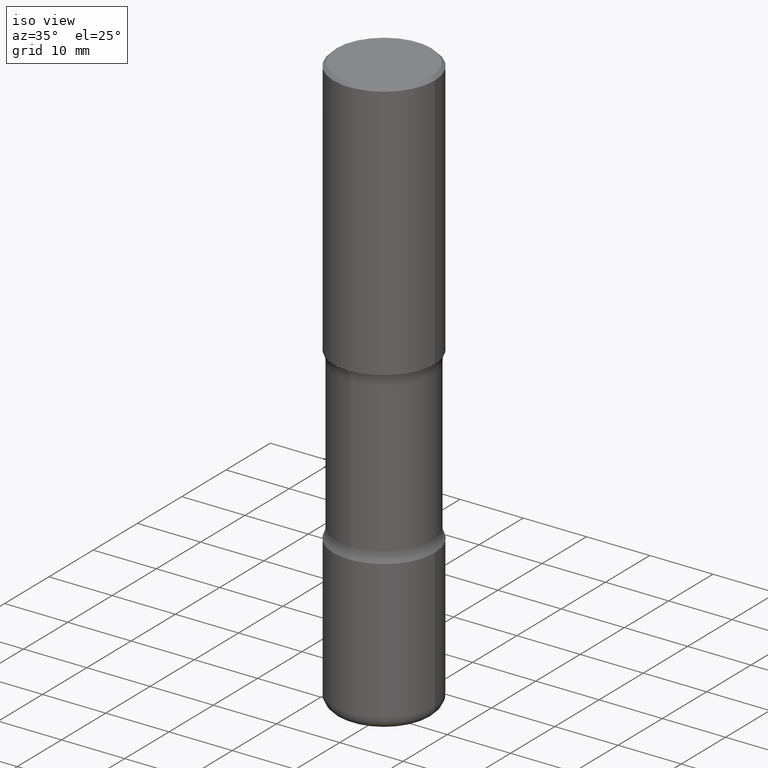
[diagram: clean part render]
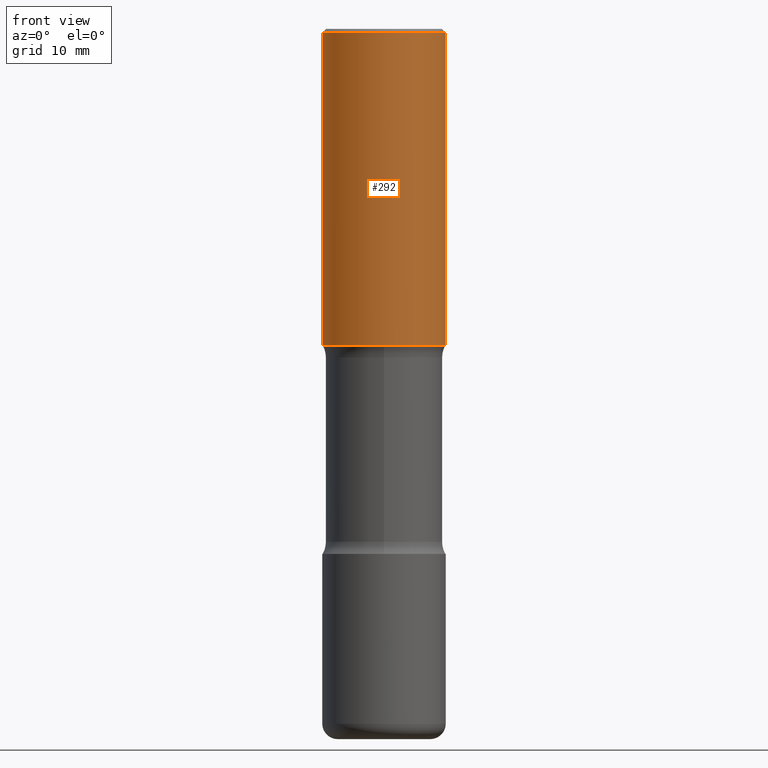
[diagram: tour spotlight — one face highlighted and labeled with its STEP entity id]
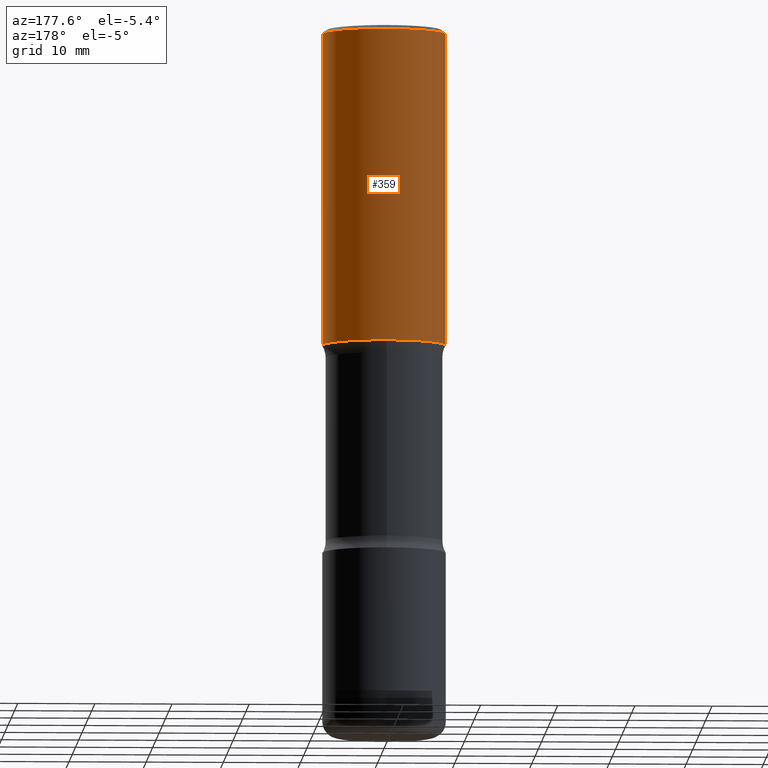
[diagram: tour spotlight — one face highlighted and labeled with its STEP entity id]
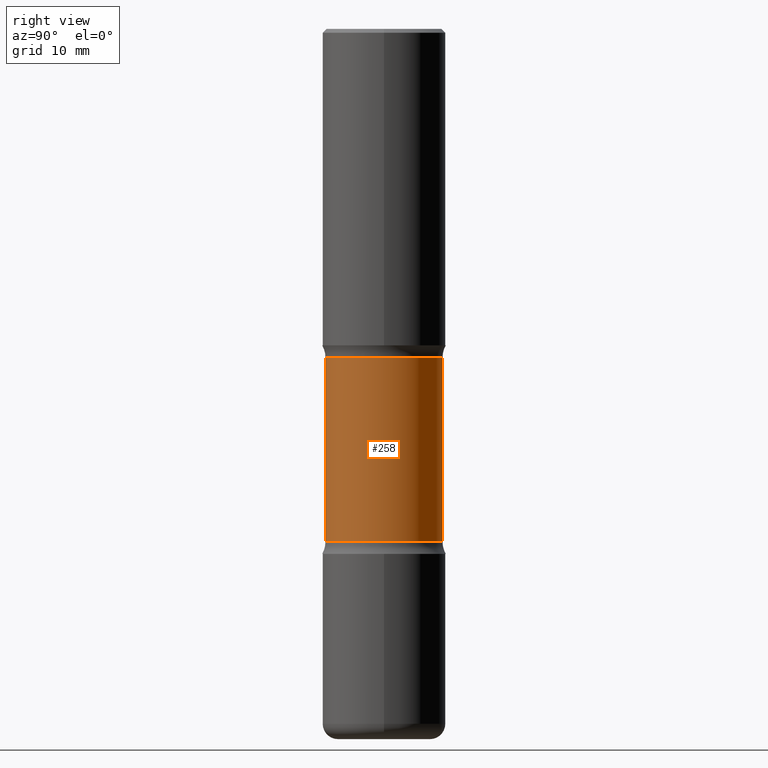
[diagram: tour spotlight — one face highlighted and labeled with its STEP entity id]
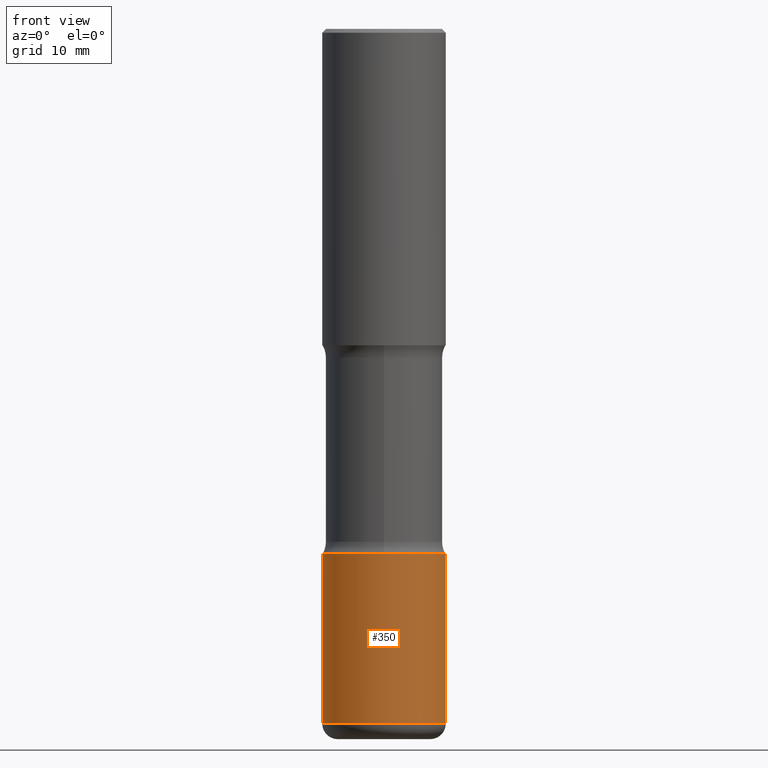
[diagram: tour spotlight — one face highlighted and labeled with its STEP entity id]
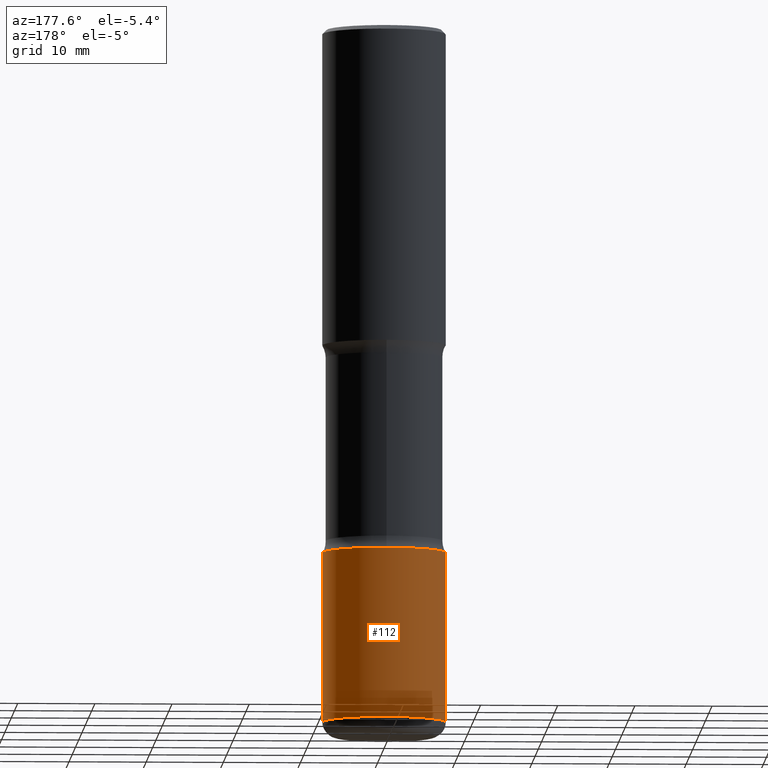
[diagram: tour spotlight — one face highlighted and labeled with its STEP entity id]
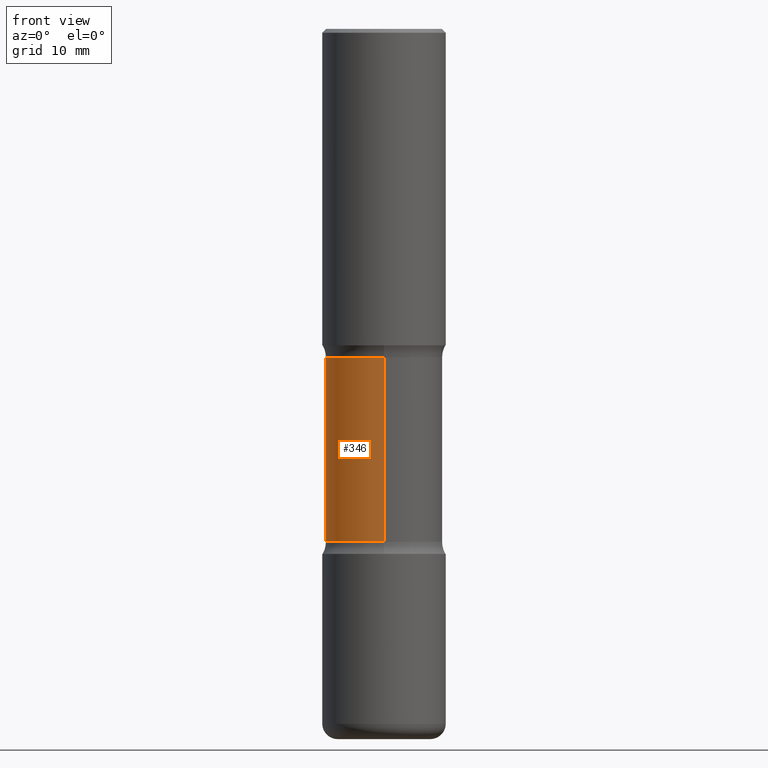
[diagram: tour spotlight — one face highlighted and labeled with its STEP entity id]
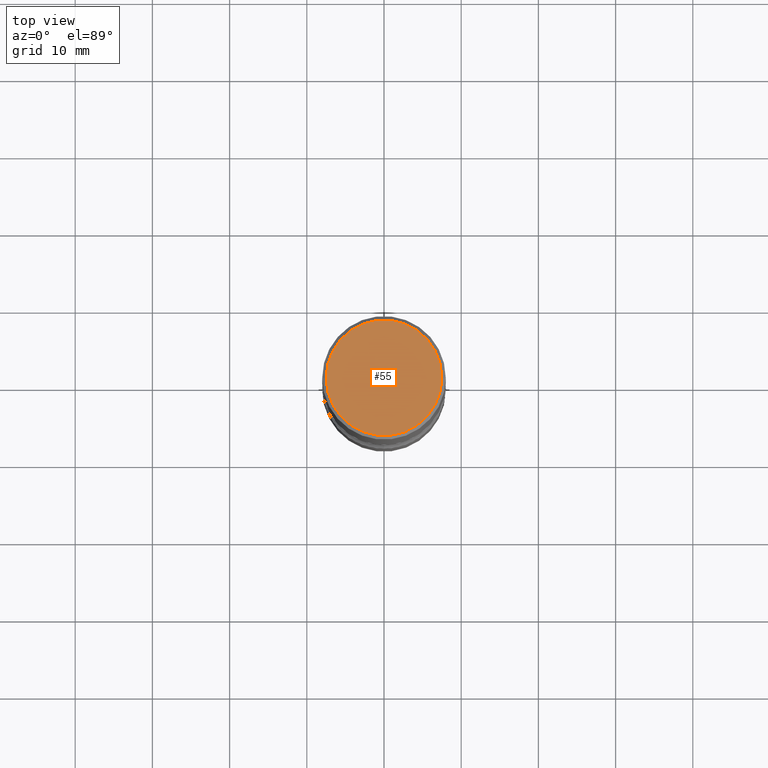
[diagram: tour spotlight — one face highlighted and labeled with its STEP entity id]
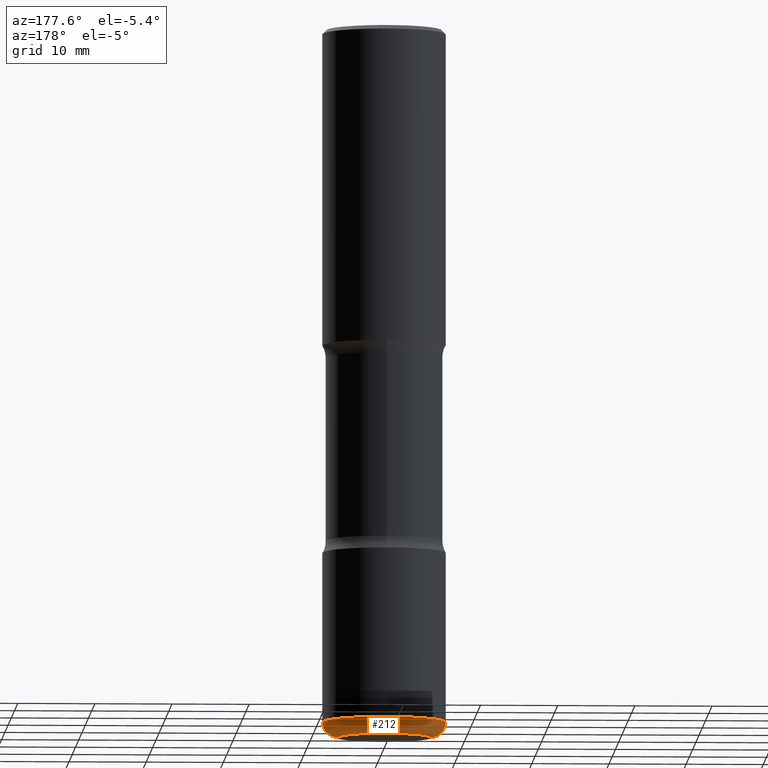
[diagram: tour spotlight — one face highlighted and labeled with its STEP entity id]
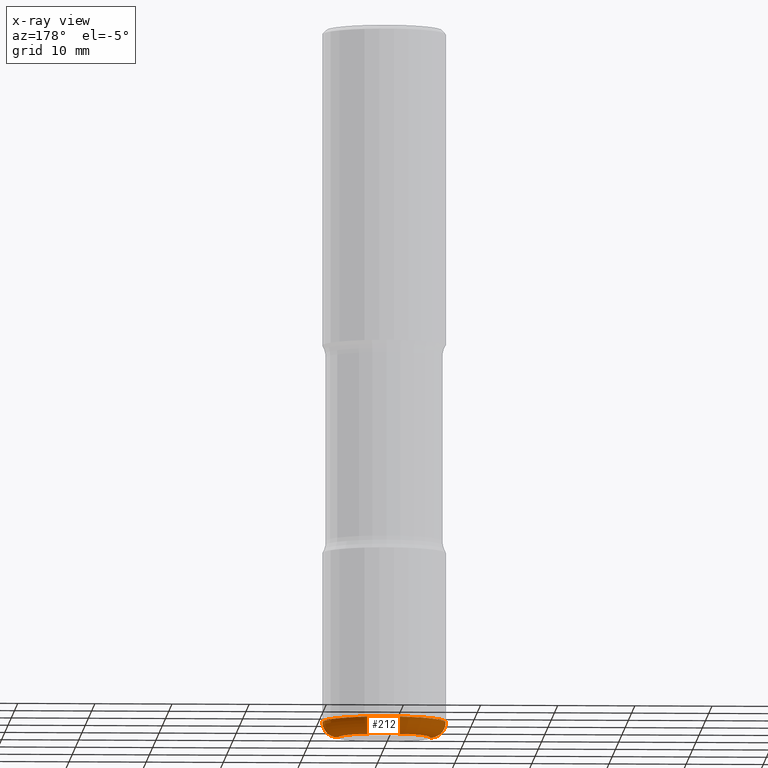
[diagram: x-ray of the same camera — body ghosted, this tour face saturated]
A machine part: a face-by-face anatomy tour. The part has 20 B-rep faces; the first image is the clean iso view, then the 8 largest visible faces are spotlighted one at a time (largest first), each with its STEP entity span.

Face 1 — front view, entity #292. In plain terms, the highlighted cylindrical surface (partial cylindrical patch) has radius 7.9997 mm, axis along (-0, 0, 1).
Definition (entity closure, byte-faithful):
#16 = EDGE_CURVE ( 'NONE', #209, #453, #411, .T. ) ;
#22 = LINE ( 'NONE', #306, #340 ) ;
#27 = EDGE_CURVE ( 'NONE', #259, #209, #22, .T. ) ;
#30 = DIRECTION ( 'NONE',  ( 1.000000000000000000, -6.982962677686266711E-15, 4.876176775795935232E-29 ) ) ;
#34 = CARTESIAN_POINT ( 'NONE',  ( 0.3149499999999997857, -2.230543471175005872E-15, -0.02000000000000006981 ) ) ;
#78 = DIRECTION ( 'NONE',  ( -2.445468806185136597E-29, 3.491481338843145583E-15, 1.000000000000000000 ) ) ;
#103 = AXIS2_PLACEMENT_3D ( 'NONE', #229, #402, #536 ) ;
#110 = LINE ( 'NONE', #448, #132 ) ;
#127 = FACE_OUTER_BOUND ( 'NONE', #131, .T. ) ;
#131 = EDGE_LOOP ( 'NONE', ( #163, #381, #255, #272 ) ) ;
#132 = VECTOR ( 'NONE', #490, 39.37007874015748143 ) ;
#140 = CARTESIAN_POINT ( 'NONE',  ( -0.3149500000000000632, -6.148604816253552124E-16, -1.614100000000000312 ) ) ;
#163 = ORIENTED_EDGE ( 'NONE', *, *, #27, .F. ) ;
#164 = CYLINDRICAL_SURFACE ( 'NONE', #412, 0.3149499999999999522 ) ;
#174 = VERTEX_POINT ( 'NONE', #347 ) ;
#194 = EDGE_CURVE ( 'NONE', #174, #453, #110, .T. ) ;
#209 = VERTEX_POINT ( 'NONE', #395 ) ;
#229 = CARTESIAN_POINT ( 'NONE',  ( 4.890937612370289799E-31, -6.982962677686315028E-17, -0.02000000000000006981 ) ) ;
#243 = AXIS2_PLACEMENT_3D ( 'NONE', #337, #544, #250 ) ;
#250 = DIRECTION ( 'NONE',  ( 1.000000000000000000, -6.982962677686268288E-15, 0.000000000000000000 ) ) ;
#255 = ORIENTED_EDGE ( 'NONE', *, *, #194, .T. ) ;
#259 = VERTEX_POINT ( 'NONE', #140 ) ;
#272 = ORIENTED_EDGE ( 'NONE', *, *, #16, .F. ) ;
#292 = ADVANCED_FACE ( 'NONE', ( #127 ), #164, .T. ) ;
#296 = CARTESIAN_POINT ( 'NONE',  ( 0.000000000000000000, 0.000000000000000000, 0.000000000000000000 ) ) ;
#306 = CARTESIAN_POINT ( 'NONE',  ( -0.3149499999999999522, 2.237854346276435196E-15, -1.549218606675782116E-29 ) ) ;
#337 = CARTESIAN_POINT ( 'NONE',  ( 3.947231200063430288E-29, -5.635600029026721857E-15, -1.614100000000000312 ) ) ;
#340 = VECTOR ( 'NONE', #452, 39.37007874015748143 ) ;
#347 = CARTESIAN_POINT ( 'NONE',  ( 0.3149500000000000632, -7.834884124364012517E-15, -1.614100000000000312 ) ) ;
#348 = CIRCLE ( 'NONE', #243, 0.3149500000000000632 ) ;
#381 = ORIENTED_EDGE ( 'NONE', *, *, #500, .T. ) ;
#395 = CARTESIAN_POINT ( 'NONE',  ( -0.3149499999999997857, 2.129454468560425389E-15, -0.02000000000000006981 ) ) ;
#402 = DIRECTION ( 'NONE',  ( -2.445468806185136597E-29, 3.491481338843145583E-15, 1.000000000000000000 ) ) ;
#411 = CIRCLE ( 'NONE', #103, 0.3149499999999997857 ) ;
#412 = AXIS2_PLACEMENT_3D ( 'NONE', #296, #78, #30 ) ;
#448 = CARTESIAN_POINT ( 'NONE',  ( 0.3149499999999999522, -2.199284095337289476E-15, 1.535751875536929569E-29 ) ) ;
#452 = DIRECTION ( 'NONE',  ( -2.445468806185136877E-29, 3.491481338843145188E-15, 1.000000000000000000 ) ) ;
#453 = VERTEX_POINT ( 'NONE', #34 ) ;
#490 = DIRECTION ( 'NONE',  ( -2.445468806185136877E-29, 3.491481338843145188E-15, 1.000000000000000000 ) ) ;
#500 = EDGE_CURVE ( 'NONE', #259, #174, #348, .T. ) ;
#536 = DIRECTION ( 'NONE',  ( 1.000000000000000000, -6.982962677686266711E-15, 0.000000000000000000 ) ) ;
#544 = DIRECTION ( 'NONE',  ( -2.445468806185136597E-29, 3.491481338843145583E-15, 1.000000000000000000 ) ) ;

Face 2 — auxiliary view, entity #359. In plain terms, the highlighted cylindrical surface (partial cylindrical patch) has radius 7.9997 mm, axis along (-0, 0, 1).
Definition (entity closure, byte-faithful):
#10 = EDGE_CURVE ( 'NONE', #174, #259, #254, .T. ) ;
#13 = DIRECTION ( 'NONE',  ( -2.445468806185136597E-29, 3.491481338843145583E-15, 1.000000000000000000 ) ) ;
#21 = DIRECTION ( 'NONE',  ( 1.000000000000000000, -6.982962677686266711E-15, 0.000000000000000000 ) ) ;
#22 = LINE ( 'NONE', #306, #340 ) ;
#27 = EDGE_CURVE ( 'NONE', #259, #209, #22, .T. ) ;
#34 = CARTESIAN_POINT ( 'NONE',  ( 0.3149499999999997857, -2.230543471175005872E-15, -0.02000000000000006981 ) ) ;
#53 = AXIS2_PLACEMENT_3D ( 'NONE', #275, #198, #360 ) ;
#56 = CARTESIAN_POINT ( 'NONE',  ( 4.890937612370289799E-31, -6.982962677686315028E-17, -0.02000000000000006981 ) ) ;
#73 = ORIENTED_EDGE ( 'NONE', *, *, #10, .T. ) ;
#110 = LINE ( 'NONE', #448, #132 ) ;
#118 = DIRECTION ( 'NONE',  ( 1.000000000000000000, -6.982962677686266711E-15, 4.876176775795935232E-29 ) ) ;
#123 = CIRCLE ( 'NONE', #240, 0.3149499999999997857 ) ;
#132 = VECTOR ( 'NONE', #490, 39.37007874015748143 ) ;
#139 = EDGE_CURVE ( 'NONE', #453, #209, #123, .T. ) ;
#140 = CARTESIAN_POINT ( 'NONE',  ( -0.3149500000000000632, -6.148604816253552124E-16, -1.614100000000000312 ) ) ;
#174 = VERTEX_POINT ( 'NONE', #347 ) ;
#194 = EDGE_CURVE ( 'NONE', #174, #453, #110, .T. ) ;
#198 = DIRECTION ( 'NONE',  ( -2.445468806185136597E-29, 3.491481338843145583E-15, 1.000000000000000000 ) ) ;
#209 = VERTEX_POINT ( 'NONE', #395 ) ;
#240 = AXIS2_PLACEMENT_3D ( 'NONE', #56, #13, #21 ) ;
#254 = CIRCLE ( 'NONE', #53, 0.3149500000000000632 ) ;
#259 = VERTEX_POINT ( 'NONE', #140 ) ;
#275 = CARTESIAN_POINT ( 'NONE',  ( 3.947231200063430288E-29, -5.635600029026721857E-15, -1.614100000000000312 ) ) ;
#285 = CARTESIAN_POINT ( 'NONE',  ( 0.000000000000000000, 0.000000000000000000, 0.000000000000000000 ) ) ;
#291 = FACE_OUTER_BOUND ( 'NONE', #520, .T. ) ;
#306 = CARTESIAN_POINT ( 'NONE',  ( -0.3149499999999999522, 2.237854346276435196E-15, -1.549218606675782116E-29 ) ) ;
#340 = VECTOR ( 'NONE', #452, 39.37007874015748143 ) ;
#347 = CARTESIAN_POINT ( 'NONE',  ( 0.3149500000000000632, -7.834884124364012517E-15, -1.614100000000000312 ) ) ;
#359 = ADVANCED_FACE ( 'NONE', ( #291 ), #504, .T. ) ;
#360 = DIRECTION ( 'NONE',  ( 1.000000000000000000, -6.982962677686268288E-15, 0.000000000000000000 ) ) ;
#361 = ORIENTED_EDGE ( 'NONE', *, *, #194, .F. ) ;
#391 = AXIS2_PLACEMENT_3D ( 'NONE', #285, #459, #118 ) ;
#395 = CARTESIAN_POINT ( 'NONE',  ( -0.3149499999999997857, 2.129454468560425389E-15, -0.02000000000000006981 ) ) ;
#407 = ORIENTED_EDGE ( 'NONE', *, *, #27, .T. ) ;
#448 = CARTESIAN_POINT ( 'NONE',  ( 0.3149499999999999522, -2.199284095337289476E-15, 1.535751875536929569E-29 ) ) ;
#452 = DIRECTION ( 'NONE',  ( -2.445468806185136877E-29, 3.491481338843145188E-15, 1.000000000000000000 ) ) ;
#453 = VERTEX_POINT ( 'NONE', #34 ) ;
#459 = DIRECTION ( 'NONE',  ( -2.445468806185136597E-29, 3.491481338843145583E-15, 1.000000000000000000 ) ) ;
#482 = ORIENTED_EDGE ( 'NONE', *, *, #139, .F. ) ;
#490 = DIRECTION ( 'NONE',  ( -2.445468806185136877E-29, 3.491481338843145188E-15, 1.000000000000000000 ) ) ;
#504 = CYLINDRICAL_SURFACE ( 'NONE', #391, 0.3149499999999999522 ) ;
#520 = EDGE_LOOP ( 'NONE', ( #73, #407, #482, #361 ) ) ;

Face 3 — right view, entity #258. In plain terms, the highlighted cylindrical surface (partial cylindrical patch) has radius 7.5819 mm, axis along (0, -0, -1).
Definition (entity closure, byte-faithful):
#1 = DIRECTION ( 'NONE',  ( 2.470630472966401970E-29, -3.455448399899237676E-15, -1.000000000000000000 ) ) ;
#15 = CYLINDRICAL_SURFACE ( 'NONE', #288, 0.2984999999999999321 ) ;
#24 = DIRECTION ( 'NONE',  ( 2.470630472966402250E-29, -3.455448399899237676E-15, -1.000000000000000000 ) ) ;
#25 = EDGE_CURVE ( 'NONE', #341, #86, #509, .T. ) ;
#60 = DIRECTION ( 'NONE',  ( 6.982962677686265922E-15, 1.000000000000000000, -3.660767830705880744E-15 ) ) ;
#80 = LINE ( 'NONE', #417, #177 ) ;
#85 = CARTESIAN_POINT ( 'NONE',  ( -2.047858652334712692E-15, -0.2985000000000125331, -3.621999999999999442 ) ) ;
#86 = VERTEX_POINT ( 'NONE', #136 ) ;
#93 = VERTEX_POINT ( 'NONE', #345 ) ;
#100 = DIRECTION ( 'NONE',  ( 6.982962677686266711E-15, 1.000000000000000000, -3.660767830705881533E-15 ) ) ;
#122 = ORIENTED_EDGE ( 'NONE', *, *, #130, .T. ) ;
#130 = EDGE_CURVE ( 'NONE', #435, #93, #181, .T. ) ;
#136 = CARTESIAN_POINT ( 'NONE',  ( -2.104286248366408700E-15, -0.2985000000000090914, -2.615116957964294109 ) ) ;
#152 = FACE_OUTER_BOUND ( 'NONE', #242, .T. ) ;
#177 = VECTOR ( 'NONE', #1, 39.37007874015748143 ) ;
#181 = CIRCLE ( 'NONE', #190, 0.2984999999999998765 ) ;
#190 = AXIS2_PLACEMENT_3D ( 'NONE', #315, #439, #100 ) ;
#217 = ORIENTED_EDGE ( 'NONE', *, *, #25, .F. ) ;
#242 = EDGE_LOOP ( 'NONE', ( #122, #430, #217, #519 ) ) ;
#258 = ADVANCED_FACE ( 'NONE', ( #152 ), #15, .T. ) ;
#288 = AXIS2_PLACEMENT_3D ( 'NONE', #393, #484, #524 ) ;
#315 = CARTESIAN_POINT ( 'NONE',  ( 4.073621540735516440E-29, -5.888082246547263507E-15, -1.676083042035706239 ) ) ;
#327 = LINE ( 'NONE', #85, #413 ) ;
#341 = VERTEX_POINT ( 'NONE', #366 ) ;
#345 = CARTESIAN_POINT ( 'NONE',  ( -2.104286248366433550E-15, -0.2985000000000057607, -1.676083042035705128 ) ) ;
#366 = CARTESIAN_POINT ( 'NONE',  ( 2.084414359289414101E-15, 0.2984999999999908282, -2.615116957964296329 ) ) ;
#393 = CARTESIAN_POINT ( 'NONE',  ( 8.881263274944184275E-29, -1.261209788528177595E-14, -3.622000000000000330 ) ) ;
#413 = VECTOR ( 'NONE', #414, 39.37007874015748143 ) ;
#414 = DIRECTION ( 'NONE',  ( 2.470630472966401970E-29, -3.455448399899237676E-15, -1.000000000000000000 ) ) ;
#417 = CARTESIAN_POINT ( 'NONE',  ( 2.084414359289438950E-15, 0.2984999999999873310, -3.622000000000001219 ) ) ;
#425 = AXIS2_PLACEMENT_3D ( 'NONE', #489, #24, #60 ) ;
#427 = EDGE_CURVE ( 'NONE', #435, #341, #80, .T. ) ;
#430 = ORIENTED_EDGE ( 'NONE', *, *, #470, .T. ) ;
#435 = VERTEX_POINT ( 'NONE', #551 ) ;
#439 = DIRECTION ( 'NONE',  ( 2.470630472966402250E-29, -3.455448399899237676E-15, -1.000000000000000000 ) ) ;
#470 = EDGE_CURVE ( 'NONE', #93, #86, #327, .T. ) ;
#484 = DIRECTION ( 'NONE',  ( 2.470630472966402250E-29, -3.455448399899237676E-15, -1.000000000000000000 ) ) ;
#489 = CARTESIAN_POINT ( 'NONE',  ( 6.393627348577659776E-29, -9.132865488793823452E-15, -2.615116957964295441 ) ) ;
#509 = CIRCLE ( 'NONE', #425, 0.2984999999999999876 ) ;
#519 = ORIENTED_EDGE ( 'NONE', *, *, #427, .F. ) ;
#524 = DIRECTION ( 'NONE',  ( 6.982962677686265922E-15, 1.000000000000000000, -3.660767830705881533E-15 ) ) ;
#551 = CARTESIAN_POINT ( 'NONE',  ( 2.084414359289390435E-15, 0.2984999999999940479, -1.676083042035707127 ) ) ;

Face 4 — front view, entity #350. In plain terms, the highlighted cylindrical surface (partial cylindrical patch) has radius 7.9997 mm, axis along (-0, 0, 1).
Definition (entity closure, byte-faithful):
#5 = VECTOR ( 'NONE', #441, 39.37007874015748143 ) ;
#9 = VERTEX_POINT ( 'NONE', #116 ) ;
#26 = FACE_OUTER_BOUND ( 'NONE', #45, .T. ) ;
#33 = DIRECTION ( 'NONE',  ( 1.000000000000000000, -6.982962677686263555E-15, 0.000000000000000000 ) ) ;
#39 = ORIENTED_EDGE ( 'NONE', *, *, #119, .F. ) ;
#45 = EDGE_LOOP ( 'NONE', ( #39, #221, #236, #405 ) ) ;
#84 = CYLINDRICAL_SURFACE ( 'NONE', #342, 0.3149500000000000632 ) ;
#116 = CARTESIAN_POINT ( 'NONE',  ( 0.3149499999999998967, -1.457064992326020852E-14, -3.543300000000000338 ) ) ;
#117 = VERTEX_POINT ( 'NONE', #493 ) ;
#119 = EDGE_CURVE ( 'NONE', #301, #146, #148, .T. ) ;
#120 = DIRECTION ( 'NONE',  ( -2.445468806185136597E-29, 3.491481338843145583E-15, 1.000000000000000000 ) ) ;
#124 = DIRECTION ( 'NONE',  ( 1.000000000000000000, -6.982962677686266711E-15, 4.876176775795936353E-29 ) ) ;
#138 = CARTESIAN_POINT ( 'NONE',  ( 0.3149500000000000632, -2.199284095337290265E-15, 1.535751875536930410E-29 ) ) ;
#146 = VERTEX_POINT ( 'NONE', #404 ) ;
#148 = LINE ( 'NONE', #273, #5 ) ;
#157 = DIRECTION ( 'NONE',  ( -2.445468806185136597E-29, 3.491481338843145583E-15, 1.000000000000000000 ) ) ;
#160 = CARTESIAN_POINT ( 'NONE',  ( -0.3149499999999998967, -1.013351148164648424E-14, -3.543300000000000338 ) ) ;
#165 = CARTESIAN_POINT ( 'NONE',  ( 6.546764541038231284E-29, -9.347044692216987539E-15, -2.677100000000000701 ) ) ;
#185 = DIRECTION ( 'NONE',  ( -2.445468806185136877E-29, 3.491481338843145188E-15, 1.000000000000000000 ) ) ;
#187 = LINE ( 'NONE', #138, #434 ) ;
#202 = AXIS2_PLACEMENT_3D ( 'NONE', #165, #368, #207 ) ;
#207 = DIRECTION ( 'NONE',  ( 1.000000000000000000, -6.982962677686265922E-15, 0.000000000000000000 ) ) ;
#213 = AXIS2_PLACEMENT_3D ( 'NONE', #416, #157, #33 ) ;
#221 = ORIENTED_EDGE ( 'NONE', *, *, #367, .T. ) ;
#236 = ORIENTED_EDGE ( 'NONE', *, *, #264, .T. ) ;
#264 = EDGE_CURVE ( 'NONE', #9, #117, #187, .T. ) ;
#273 = CARTESIAN_POINT ( 'NONE',  ( -0.3149500000000000632, 2.237854346276435985E-15, -1.549218606675782956E-29 ) ) ;
#301 = VERTEX_POINT ( 'NONE', #160 ) ;
#342 = AXIS2_PLACEMENT_3D ( 'NONE', #550, #120, #124 ) ;
#350 = ADVANCED_FACE ( 'NONE', ( #26 ), #84, .T. ) ;
#367 = EDGE_CURVE ( 'NONE', #301, #9, #399, .T. ) ;
#368 = DIRECTION ( 'NONE',  ( -2.445468806185136597E-29, 3.491481338843145583E-15, 1.000000000000000000 ) ) ;
#399 = CIRCLE ( 'NONE', #213, 0.3149500000000000077 ) ;
#404 = CARTESIAN_POINT ( 'NONE',  ( -0.3149500000000001743, -8.621350913793515532E-15, -2.677100000000000701 ) ) ;
#405 = ORIENTED_EDGE ( 'NONE', *, *, #455, .F. ) ;
#416 = CARTESIAN_POINT ( 'NONE',  ( 8.665029620955795190E-29, -1.237136582792291865E-14, -3.543300000000000338 ) ) ;
#434 = VECTOR ( 'NONE', #185, 39.37007874015748143 ) ;
#441 = DIRECTION ( 'NONE',  ( -2.445468806185136877E-29, 3.491481338843145188E-15, 1.000000000000000000 ) ) ;
#455 = EDGE_CURVE ( 'NONE', #146, #117, #487, .T. ) ;
#487 = CIRCLE ( 'NONE', #202, 0.3149500000000001743 ) ;
#493 = CARTESIAN_POINT ( 'NONE',  ( 0.3149500000000001743, -1.154632878755427741E-14, -2.677100000000000701 ) ) ;
#550 = CARTESIAN_POINT ( 'NONE',  ( 0.000000000000000000, 0.000000000000000000, 0.000000000000000000 ) ) ;

Face 5 — auxiliary view, entity #112. In plain terms, the highlighted cylindrical surface (partial cylindrical patch) has radius 7.9997 mm, axis along (-0, 0, 1).
Definition (entity closure, byte-faithful):
#5 = VECTOR ( 'NONE', #441, 39.37007874015748143 ) ;
#9 = VERTEX_POINT ( 'NONE', #116 ) ;
#61 = DIRECTION ( 'NONE',  ( 1.000000000000000000, -6.982962677686266711E-15, 4.876176775795936353E-29 ) ) ;
#64 = AXIS2_PLACEMENT_3D ( 'NONE', #267, #106, #61 ) ;
#65 = CIRCLE ( 'NONE', #498, 0.3149500000000001743 ) ;
#92 = CARTESIAN_POINT ( 'NONE',  ( 8.665029620955795190E-29, -1.237136582792291865E-14, -3.543300000000000338 ) ) ;
#106 = DIRECTION ( 'NONE',  ( -2.445468806185136597E-29, 3.491481338843145583E-15, 1.000000000000000000 ) ) ;
#112 = ADVANCED_FACE ( 'NONE', ( #516 ), #531, .T. ) ;
#116 = CARTESIAN_POINT ( 'NONE',  ( 0.3149499999999998967, -1.457064992326020852E-14, -3.543300000000000338 ) ) ;
#117 = VERTEX_POINT ( 'NONE', #493 ) ;
#119 = EDGE_CURVE ( 'NONE', #301, #146, #148, .T. ) ;
#138 = CARTESIAN_POINT ( 'NONE',  ( 0.3149500000000000632, -2.199284095337290265E-15, 1.535751875536930410E-29 ) ) ;
#146 = VERTEX_POINT ( 'NONE', #404 ) ;
#148 = LINE ( 'NONE', #273, #5 ) ;
#160 = CARTESIAN_POINT ( 'NONE',  ( -0.3149499999999998967, -1.013351148164648424E-14, -3.543300000000000338 ) ) ;
#185 = DIRECTION ( 'NONE',  ( -2.445468806185136877E-29, 3.491481338843145188E-15, 1.000000000000000000 ) ) ;
#187 = LINE ( 'NONE', #138, #434 ) ;
#192 = EDGE_CURVE ( 'NONE', #117, #146, #65, .T. ) ;
#216 = ORIENTED_EDGE ( 'NONE', *, *, #192, .F. ) ;
#264 = EDGE_CURVE ( 'NONE', #9, #117, #187, .T. ) ;
#267 = CARTESIAN_POINT ( 'NONE',  ( 0.000000000000000000, 0.000000000000000000, 0.000000000000000000 ) ) ;
#273 = CARTESIAN_POINT ( 'NONE',  ( -0.3149500000000000632, 2.237854346276435985E-15, -1.549218606675782956E-29 ) ) ;
#286 = DIRECTION ( 'NONE',  ( 1.000000000000000000, -6.982962677686263555E-15, 0.000000000000000000 ) ) ;
#301 = VERTEX_POINT ( 'NONE', #160 ) ;
#302 = AXIS2_PLACEMENT_3D ( 'NONE', #92, #325, #286 ) ;
#314 = CARTESIAN_POINT ( 'NONE',  ( 6.546764541038231284E-29, -9.347044692216987539E-15, -2.677100000000000701 ) ) ;
#317 = ORIENTED_EDGE ( 'NONE', *, *, #429, .T. ) ;
#325 = DIRECTION ( 'NONE',  ( -2.445468806185136597E-29, 3.491481338843145583E-15, 1.000000000000000000 ) ) ;
#338 = ORIENTED_EDGE ( 'NONE', *, *, #119, .T. ) ;
#355 = DIRECTION ( 'NONE',  ( 1.000000000000000000, -6.982962677686265922E-15, 0.000000000000000000 ) ) ;
#357 = ORIENTED_EDGE ( 'NONE', *, *, #264, .F. ) ;
#404 = CARTESIAN_POINT ( 'NONE',  ( -0.3149500000000001743, -8.621350913793515532E-15, -2.677100000000000701 ) ) ;
#429 = EDGE_CURVE ( 'NONE', #9, #301, #542, .T. ) ;
#434 = VECTOR ( 'NONE', #185, 39.37007874015748143 ) ;
#441 = DIRECTION ( 'NONE',  ( -2.445468806185136877E-29, 3.491481338843145188E-15, 1.000000000000000000 ) ) ;
#493 = CARTESIAN_POINT ( 'NONE',  ( 0.3149500000000001743, -1.154632878755427741E-14, -2.677100000000000701 ) ) ;
#498 = AXIS2_PLACEMENT_3D ( 'NONE', #314, #525, #355 ) ;
#513 = EDGE_LOOP ( 'NONE', ( #317, #338, #216, #357 ) ) ;
#516 = FACE_OUTER_BOUND ( 'NONE', #513, .T. ) ;
#525 = DIRECTION ( 'NONE',  ( -2.445468806185136597E-29, 3.491481338843145583E-15, 1.000000000000000000 ) ) ;
#531 = CYLINDRICAL_SURFACE ( 'NONE', #64, 0.3149500000000000632 ) ;
#542 = CIRCLE ( 'NONE', #302, 0.3149500000000000077 ) ;

Face 6 — front view, entity #346. In plain terms, the highlighted cylindrical surface (partial cylindrical patch) has radius 7.5819 mm, axis along (0, -0, -1).
Definition (entity closure, byte-faithful):
#1 = DIRECTION ( 'NONE',  ( 2.470630472966401970E-29, -3.455448399899237676E-15, -1.000000000000000000 ) ) ;
#4 = ORIENTED_EDGE ( 'NONE', *, *, #265, .T. ) ;
#36 = EDGE_LOOP ( 'NONE', ( #479, #4, #376, #379 ) ) ;
#74 = DIRECTION ( 'NONE',  ( 2.470630472966402250E-29, -3.455448399899237676E-15, -1.000000000000000000 ) ) ;
#80 = LINE ( 'NONE', #417, #177 ) ;
#85 = CARTESIAN_POINT ( 'NONE',  ( -2.047858652334712692E-15, -0.2985000000000125331, -3.621999999999999442 ) ) ;
#86 = VERTEX_POINT ( 'NONE', #136 ) ;
#91 = CIRCLE ( 'NONE', #114, 0.2984999999999998765 ) ;
#93 = VERTEX_POINT ( 'NONE', #345 ) ;
#114 = AXIS2_PLACEMENT_3D ( 'NONE', #527, #311, #488 ) ;
#136 = CARTESIAN_POINT ( 'NONE',  ( -2.104286248366408700E-15, -0.2985000000000090914, -2.615116957964294109 ) ) ;
#173 = DIRECTION ( 'NONE',  ( 6.982962677686265922E-15, 1.000000000000000000, -3.660767830705880744E-15 ) ) ;
#177 = VECTOR ( 'NONE', #1, 39.37007874015748143 ) ;
#211 = DIRECTION ( 'NONE',  ( 2.470630472966402250E-29, -3.455448399899237676E-15, -1.000000000000000000 ) ) ;
#223 = AXIS2_PLACEMENT_3D ( 'NONE', #547, #74, #318 ) ;
#265 = EDGE_CURVE ( 'NONE', #93, #435, #91, .T. ) ;
#276 = CIRCLE ( 'NONE', #530, 0.2984999999999999876 ) ;
#294 = CARTESIAN_POINT ( 'NONE',  ( 6.393627348577659776E-29, -9.132865488793823452E-15, -2.615116957964295441 ) ) ;
#311 = DIRECTION ( 'NONE',  ( 2.470630472966402250E-29, -3.455448399899237676E-15, -1.000000000000000000 ) ) ;
#318 = DIRECTION ( 'NONE',  ( 6.982962677686265922E-15, 1.000000000000000000, -3.660767830705881533E-15 ) ) ;
#326 = CYLINDRICAL_SURFACE ( 'NONE', #223, 0.2984999999999999321 ) ;
#327 = LINE ( 'NONE', #85, #413 ) ;
#341 = VERTEX_POINT ( 'NONE', #366 ) ;
#345 = CARTESIAN_POINT ( 'NONE',  ( -2.104286248366433550E-15, -0.2985000000000057607, -1.676083042035705128 ) ) ;
#346 = ADVANCED_FACE ( 'NONE', ( #538 ), #326, .T. ) ;
#366 = CARTESIAN_POINT ( 'NONE',  ( 2.084414359289414101E-15, 0.2984999999999908282, -2.615116957964296329 ) ) ;
#376 = ORIENTED_EDGE ( 'NONE', *, *, #427, .T. ) ;
#379 = ORIENTED_EDGE ( 'NONE', *, *, #478, .F. ) ;
#413 = VECTOR ( 'NONE', #414, 39.37007874015748143 ) ;
#414 = DIRECTION ( 'NONE',  ( 2.470630472966401970E-29, -3.455448399899237676E-15, -1.000000000000000000 ) ) ;
#417 = CARTESIAN_POINT ( 'NONE',  ( 2.084414359289438950E-15, 0.2984999999999873310, -3.622000000000001219 ) ) ;
#427 = EDGE_CURVE ( 'NONE', #435, #341, #80, .T. ) ;
#435 = VERTEX_POINT ( 'NONE', #551 ) ;
#470 = EDGE_CURVE ( 'NONE', #93, #86, #327, .T. ) ;
#478 = EDGE_CURVE ( 'NONE', #86, #341, #276, .T. ) ;
#479 = ORIENTED_EDGE ( 'NONE', *, *, #470, .F. ) ;
#488 = DIRECTION ( 'NONE',  ( 6.982962677686266711E-15, 1.000000000000000000, -3.660767830705881533E-15 ) ) ;
#527 = CARTESIAN_POINT ( 'NONE',  ( 4.073621540735516440E-29, -5.888082246547263507E-15, -1.676083042035706239 ) ) ;
#530 = AXIS2_PLACEMENT_3D ( 'NONE', #294, #211, #173 ) ;
#538 = FACE_OUTER_BOUND ( 'NONE', #36, .T. ) ;
#547 = CARTESIAN_POINT ( 'NONE',  ( 8.881263274944184275E-29, -1.261209788528177595E-14, -3.622000000000000330 ) ) ;
#551 = CARTESIAN_POINT ( 'NONE',  ( 2.084414359289390435E-15, 0.2984999999999940479, -1.676083042035707127 ) ) ;

Face 7 — top view, entity #55. In plain terms, the highlighted planar face has unit normal (0, -0, -1).
Definition (entity closure, byte-faithful):
#42 = EDGE_CURVE ( 'NONE', #44, #303, #90, .T. ) ;
#44 = VERTEX_POINT ( 'NONE', #191 ) ;
#54 = CIRCLE ( 'NONE', #518, 0.2949499999999997679 ) ;
#55 = ADVANCED_FACE ( 'NONE', ( #159 ), #196, .F. ) ;
#69 = ORIENTED_EDGE ( 'NONE', *, *, #300, .T. ) ;
#90 = CIRCLE ( 'NONE', #496, 0.2949499999999997679 ) ;
#99 = DIRECTION ( 'NONE',  ( -1.000000000000000000, 6.982962677686265922E-15, -4.876176775795935793E-29 ) ) ;
#108 = DIRECTION ( 'NONE',  ( 1.000000000000000000, -6.982962677686265922E-15, 4.876053491004738270E-29 ) ) ;
#159 = FACE_OUTER_BOUND ( 'NONE', #515, .T. ) ;
#191 = CARTESIAN_POINT ( 'NONE',  ( -0.2949499999999997679, 2.094539655171993740E-15, 1.280553747028672311E-17 ) ) ;
#196 = PLANE ( 'NONE',  #307 ) ;
#252 = DIRECTION ( 'NONE',  ( -2.445468806185136597E-29, 3.491481338843145583E-15, 1.000000000000000000 ) ) ;
#270 = CARTESIAN_POINT ( 'NONE',  ( 2.059624841783562486E-15, 0.2949499999999997679, -1.023409652156634153E-15 ) ) ;
#278 = CARTESIAN_POINT ( 'NONE',  ( 0.2949499999999997679, -2.127023677808858891E-15, 1.280553747031588939E-17 ) ) ;
#279 = CARTESIAN_POINT ( 'NONE',  ( -3.131554243005663153E-46, 4.471029511141347348E-32, 1.280553747030124924E-17 ) ) ;
#300 = EDGE_CURVE ( 'NONE', #303, #44, #54, .T. ) ;
#303 = VERTEX_POINT ( 'NONE', #278 ) ;
#307 = AXIS2_PLACEMENT_3D ( 'NONE', #270, #442, #99 ) ;
#415 = ORIENTED_EDGE ( 'NONE', *, *, #42, .T. ) ;
#442 = DIRECTION ( 'NONE',  ( 2.438088387897960049E-29, -3.491481338843145188E-15, -1.000000000000000000 ) ) ;
#496 = AXIS2_PLACEMENT_3D ( 'NONE', #279, #522, #108 ) ;
#502 = DIRECTION ( 'NONE',  ( 1.000000000000000000, -6.982962677686265922E-15, 4.876053491004738270E-29 ) ) ;
#515 = EDGE_LOOP ( 'NONE', ( #415, #69 ) ) ;
#518 = AXIS2_PLACEMENT_3D ( 'NONE', #541, #252, #502 ) ;
#522 = DIRECTION ( 'NONE',  ( -2.445468806185136597E-29, 3.491481338843145583E-15, 1.000000000000000000 ) ) ;
#541 = CARTESIAN_POINT ( 'NONE',  ( -3.131554243005663153E-46, 4.471029511141347348E-32, 1.280553747030124924E-17 ) ) ;

Face 8 — auxiliary view, entity #212. An x-ray twin of the same camera follows (body ghosted, this face saturated) — the face is partly hidden behind the body. In plain terms, the highlighted toroidal blend (fillet) surface has major radius 6.0008 mm and minor (blend) radius 1.999 mm.
Definition (entity closure, byte-faithful):
#9 = VERTEX_POINT ( 'NONE', #116 ) ;
#18 = DIRECTION ( 'NONE',  ( -2.445468806185136597E-29, 3.491481338843145583E-15, 1.000000000000000000 ) ) ;
#51 = DIRECTION ( 'NONE',  ( -2.445468806185136597E-29, 3.491481338843145583E-15, 1.000000000000000000 ) ) ;
#58 = DIRECTION ( 'NONE',  ( -1.000000000000000000, 7.105427357601008170E-15, 0.000000000000000000 ) ) ;
#83 = ORIENTED_EDGE ( 'NONE', *, *, #172, .T. ) ;
#92 = CARTESIAN_POINT ( 'NONE',  ( 8.665029620955795190E-29, -1.237136582792291865E-14, -3.543300000000000338 ) ) ;
#98 = CIRCLE ( 'NONE', #375, 0.07869999999999956197 ) ;
#116 = CARTESIAN_POINT ( 'NONE',  ( 0.3149499999999998967, -1.457064992326020852E-14, -3.543300000000000338 ) ) ;
#134 = EDGE_CURVE ( 'NONE', #533, #9, #98, .T. ) ;
#143 = CARTESIAN_POINT ( 'NONE',  ( 0.2362500000000001821, -1.402109076052630027E-14, -3.543300000000000338 ) ) ;
#160 = CARTESIAN_POINT ( 'NONE',  ( -0.3149499999999998967, -1.013351148164648424E-14, -3.543300000000000338 ) ) ;
#161 = CARTESIAN_POINT ( 'NONE',  ( -0.2362500000000001821, -1.055049983885156031E-14, -3.621999999999999886 ) ) ;
#166 = TOROIDAL_SURFACE ( 'NONE', #449, 0.2362500000000001821, 0.07869999999999958973 ) ;
#170 = ORIENTED_EDGE ( 'NONE', *, *, #429, .F. ) ;
#172 = EDGE_CURVE ( 'NONE', #298, #301, #529, .T. ) ;
#178 = EDGE_CURVE ( 'NONE', #533, #298, #262, .T. ) ;
#195 = DIRECTION ( 'NONE',  ( 1.000000000000000000, -6.982962677686269866E-15, 4.883557194083114022E-29 ) ) ;
#212 = ADVANCED_FACE ( 'NONE', ( #398 ), #166, .T. ) ;
#262 = CIRCLE ( 'NONE', #460, 0.2362500000000001821 ) ;
#266 = CARTESIAN_POINT ( 'NONE',  ( 8.857488016002564476E-29, -1.264614540928987199E-14, -3.621999999999999886 ) ) ;
#271 = CARTESIAN_POINT ( 'NONE',  ( 8.665029620955795190E-29, -1.237136582792291865E-14, -3.543300000000000338 ) ) ;
#286 = DIRECTION ( 'NONE',  ( 1.000000000000000000, -6.982962677686263555E-15, 0.000000000000000000 ) ) ;
#298 = VERTEX_POINT ( 'NONE', #161 ) ;
#301 = VERTEX_POINT ( 'NONE', #160 ) ;
#302 = AXIS2_PLACEMENT_3D ( 'NONE', #92, #325, #286 ) ;
#320 = AXIS2_PLACEMENT_3D ( 'NONE', #351, #443, #58 ) ;
#325 = DIRECTION ( 'NONE',  ( -2.445468806185136597E-29, 3.491481338843145583E-15, 1.000000000000000000 ) ) ;
#349 = DIRECTION ( 'NONE',  ( 1.000000000000000000, -6.982962677686265133E-15, 0.000000000000000000 ) ) ;
#351 = CARTESIAN_POINT ( 'NONE',  ( -0.2362500000000001821, -1.069270861468967988E-14, -3.543300000000000338 ) ) ;
#353 = DIRECTION ( 'NONE',  ( -6.982962677686266711E-15, -1.000000000000000000, 3.491481338843145583E-15 ) ) ;
#375 = AXIS2_PLACEMENT_3D ( 'NONE', #143, #353, #392 ) ;
#392 = DIRECTION ( 'NONE',  ( 1.000000000000000000, -6.982962677686259611E-15, 0.000000000000000000 ) ) ;
#398 = FACE_OUTER_BOUND ( 'NONE', #537, .T. ) ;
#424 = CARTESIAN_POINT ( 'NONE',  ( 0.2362500000000001821, -1.429587034189325203E-14, -3.621999999999999886 ) ) ;
#429 = EDGE_CURVE ( 'NONE', #9, #301, #542, .T. ) ;
#443 = DIRECTION ( 'NONE',  ( 7.105427357601001859E-15, 1.000000000000000000, -3.491481338843145583E-15 ) ) ;
#449 = AXIS2_PLACEMENT_3D ( 'NONE', #271, #18, #195 ) ;
#460 = AXIS2_PLACEMENT_3D ( 'NONE', #266, #51, #349 ) ;
#464 = ORIENTED_EDGE ( 'NONE', *, *, #178, .T. ) ;
#528 = ORIENTED_EDGE ( 'NONE', *, *, #134, .F. ) ;
#529 = CIRCLE ( 'NONE', #320, 0.07869999999999956197 ) ;
#533 = VERTEX_POINT ( 'NONE', #424 ) ;
#537 = EDGE_LOOP ( 'NONE', ( #464, #83, #170, #528 ) ) ;
#542 = CIRCLE ( 'NONE', #302, 0.3149500000000000077 ) ;